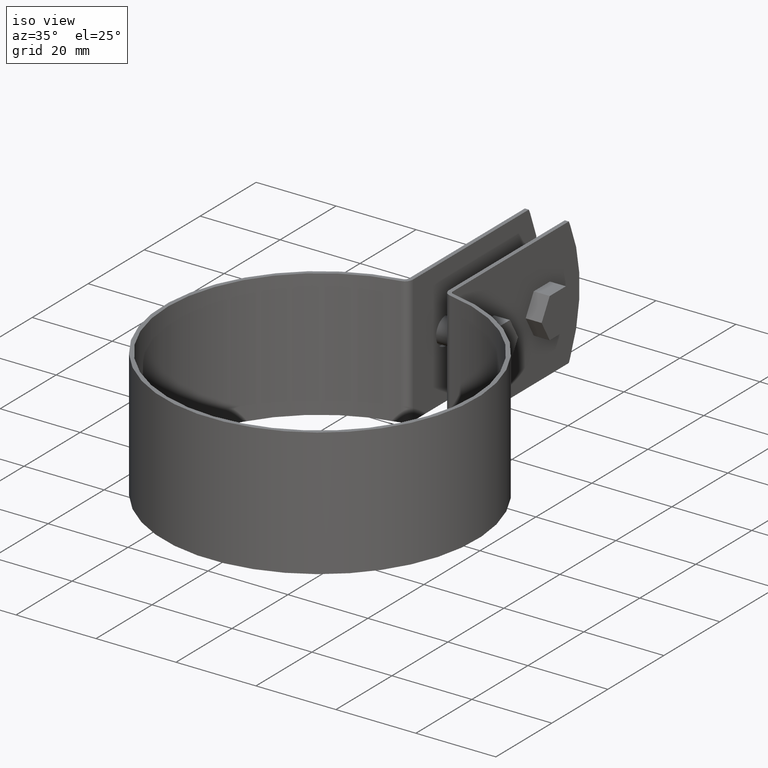
[diagram: clean part render]
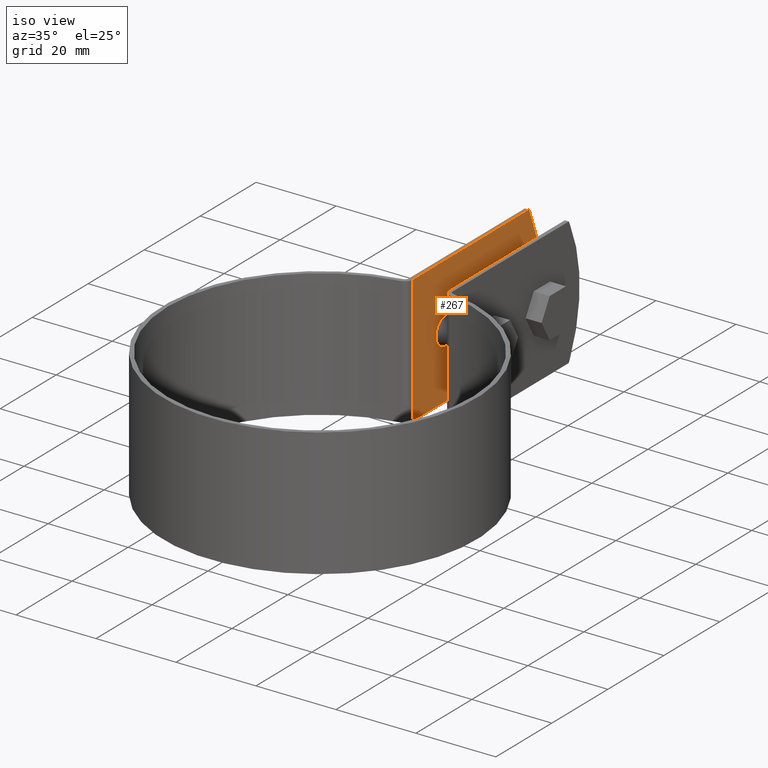
[diagram: same view with one face highlighted and labeled with its STEP entity id]
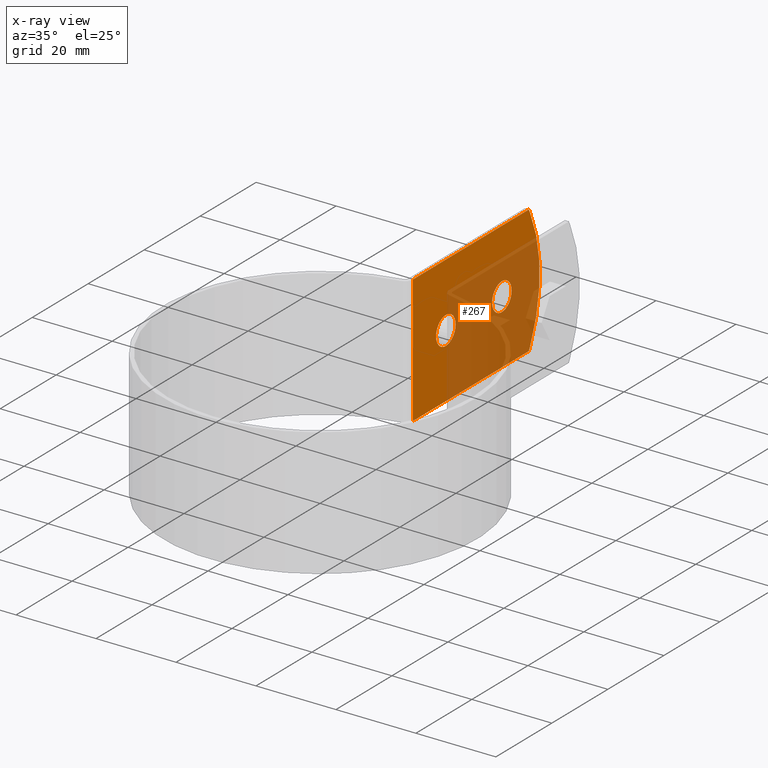
[diagram: x-ray of the same camera — body ghosted, the highlighted face saturated]
A machine part, iso view. The second image highlights one B-rep face of the part: STEP entity #267.
The next image is the same camera in x-ray: the body ghosted, the highlighted face saturated — about 56% of this face is hidden behind the body in this view.
In plain terms, the highlighted planar face has unit normal (-1, 0, 0).
Its self-contained STEP definition (entity closure, byte-faithful):
#267 = ADVANCED_FACE( '', ( #358, #359, #360 ), #361, .F. );
#358 = FACE_BOUND( '', #566, .T. );
#359 = FACE_OUTER_BOUND( '', #567, .T. );
#360 = FACE_BOUND( '', #568, .T. );
#361 = PLANE( '', #569 );
#566 = EDGE_LOOP( '', ( #774 ) );
#567 = EDGE_LOOP( '', ( #775, #776, #777, #778, #779, #780 ) );
#568 = EDGE_LOOP( '', ( #781 ) );
#569 = AXIS2_PLACEMENT_3D( '', #782, #783, #784 );
#774 = ORIENTED_EDGE( '', *, *, #1448, .F. );
#775 = ORIENTED_EDGE( '', *, *, #1449, .F. );
#776 = ORIENTED_EDGE( '', *, *, #1450, .F. );
#777 = ORIENTED_EDGE( '', *, *, #1451, .F. );
#778 = ORIENTED_EDGE( '', *, *, #1452, .T. );
#779 = ORIENTED_EDGE( '', *, *, #1453, .F. );
#780 = ORIENTED_EDGE( '', *, *, #1454, .F. );
#781 = ORIENTED_EDGE( '', *, *, #1455, .F. );
#782 = CARTESIAN_POINT( '', ( -4.50000000000000, 84.8836706246900, -16.0000000000000 ) );
#783 = DIRECTION( '', ( -1.00000000000000, 6.06692130572647E-017, 0.000000000000000 ) );
#784 = DIRECTION( '', ( -6.06692130572647E-017, -1.00000000000000, 0.000000000000000 ) );
#1448 = EDGE_CURVE( '', #1650, #1650, #1651, .F. );
#1449 = EDGE_CURVE( '', #1652, #1653, #1654, .T. );
#1450 = EDGE_CURVE( '', #1655, #1652, #1656, .T. );
#1451 = EDGE_CURVE( '', #1657, #1655, #1658, .T. );
#1452 = EDGE_CURVE( '', #1657, #1659, #1660, .T. );
#1453 = EDGE_CURVE( '', #1661, #1659, #1662, .T. );
#1454 = EDGE_CURVE( '', #1653, #1661, #1663, .T. );
#1455 = EDGE_CURVE( '', #1664, #1664, #1665, .F. );
#1650 = VERTEX_POINT( '', #1990 );
#1651 = CIRCLE( '', #1991, 3.50000000000000 );
#1652 = VERTEX_POINT( '', #1992 );
#1653 = VERTEX_POINT( '', #1993 );
#1654 = LINE( '', #1994, #1995 );
#1655 = VERTEX_POINT( '', #1996 );
#1656 = CIRCLE( '', #1997, 35.0000000000000 );
#1657 = VERTEX_POINT( '', #1998 );
#1658 = LINE( '', #1999, #2000 );
#1659 = VERTEX_POINT( '', #2001 );
#1660 = LINE( '', #2002, #2003 );
#1661 = VERTEX_POINT( '', #2004 );
#1662 = LINE( '', #2005, #2006 );
#1663 = LINE( '', #2007, #2008 );
#1664 = VERTEX_POINT( '', #2009 );
#1665 = CIRCLE( '', #2010, 3.50000000000000 );
#1990 = CARTESIAN_POINT( '', ( -4.49999999999999, 67.8836706246900, -8.67361737988404E-016 ) );
#1991 = AXIS2_PLACEMENT_3D( '', #2554, #2555, #2556 );
#1992 = CARTESIAN_POINT( '', ( -4.50000000000002, 81.5064472263738, -15.0000000000000 ) );
#1993 = CARTESIAN_POINT( '', ( -4.50000000000000, 81.0321055773485, -16.0000000000000 ) );
#1994 = CARTESIAN_POINT( '', ( -4.50000000000000, 81.7395358921664, -14.5086059462172 ) );
#1995 = VECTOR( '', #2557, 1000.00000000000 );
#1996 = CARTESIAN_POINT( '', ( -4.50000000000002, 81.5064472263738, 15.0000000000000 ) );
#1997 = AXIS2_PLACEMENT_3D( '', #2558, #2559, #2560 );
#1998 = CARTESIAN_POINT( '', ( -4.50000000000000, 81.0321055773485, 16.0000000000000 ) );
#1999 = CARTESIAN_POINT( '', ( -4.49999999999999, 94.1305014177241, -11.6138430333747 ) );
#2000 = VECTOR( '', #2561, 1000.00000000000 );
#2001 = CARTESIAN_POINT( '', ( -4.50000000000000, 39.6203546172924, 16.0000000000000 ) );
#2002 = CARTESIAN_POINT( '', ( -4.50000000000000, 84.8836706246900, 16.0000000000000 ) );
#2003 = VECTOR( '', #2562, 1000.00000000000 );
#2004 = CARTESIAN_POINT( '', ( -4.50000000000000, 39.6203546172924, -16.0000000000000 ) );
#2005 = CARTESIAN_POINT( '', ( -4.50000000000000, 39.6203546172924, -16.0000000000000 ) );
#2006 = VECTOR( '', #2563, 1000.00000000000 );
#2007 = CARTESIAN_POINT( '', ( -4.50000000000000, 84.8836706246900, -16.0000000000000 ) );
#2008 = VECTOR( '', #2564, 1000.00000000000 );
#2009 = CARTESIAN_POINT( '', ( -4.49999999999999, 47.8836706246900, -8.67361737988404E-016 ) );
#2010 = AXIS2_PLACEMENT_3D( '', #2565, #2566, #2567 );
#2554 = CARTESIAN_POINT( '', ( -4.49999999999999, 71.3836706246900, -8.67361737988404E-016 ) );
#2555 = DIRECTION( '', ( -1.00000000000000, 6.06692130572647E-017, 0.000000000000000 ) );
#2556 = DIRECTION( '', ( -6.06692130572647E-017, -1.00000000000000, 0.000000000000000 ) );
#2557 = DIRECTION( '', ( -2.60010913102563E-017, -0.428571428571429, -0.903507902905251 ) );
#2558 = CARTESIAN_POINT( '', ( -4.49999999999999, 49.8836706246900, -2.77555756156289E-014 ) );
#2559 = DIRECTION( '', ( -1.00000000000000, 6.06692130572647E-017, 0.000000000000000 ) );
#2560 = DIRECTION( '', ( -6.06692130572647E-017, -1.00000000000000, 0.000000000000000 ) );
#2561 = DIRECTION( '', ( 2.60010913102563E-017, 0.428571428571429, -0.903507902905251 ) );
#2562 = DIRECTION( '', ( -6.06692130572647E-017, -1.00000000000000, 0.000000000000000 ) );
#2563 = DIRECTION( '', ( 0.000000000000000, 0.000000000000000, 1.00000000000000 ) );
#2564 = DIRECTION( '', ( -6.06692130572647E-017, -1.00000000000000, 0.000000000000000 ) );
#2565 = CARTESIAN_POINT( '', ( -4.49999999999999, 51.3836706246900, -8.67361737988404E-016 ) );
#2566 = DIRECTION( '', ( -1.00000000000000, 6.06692130572647E-017, 0.000000000000000 ) );
#2567 = DIRECTION( '', ( -6.06692130572647E-017, -1.00000000000000, 0.000000000000000 ) );